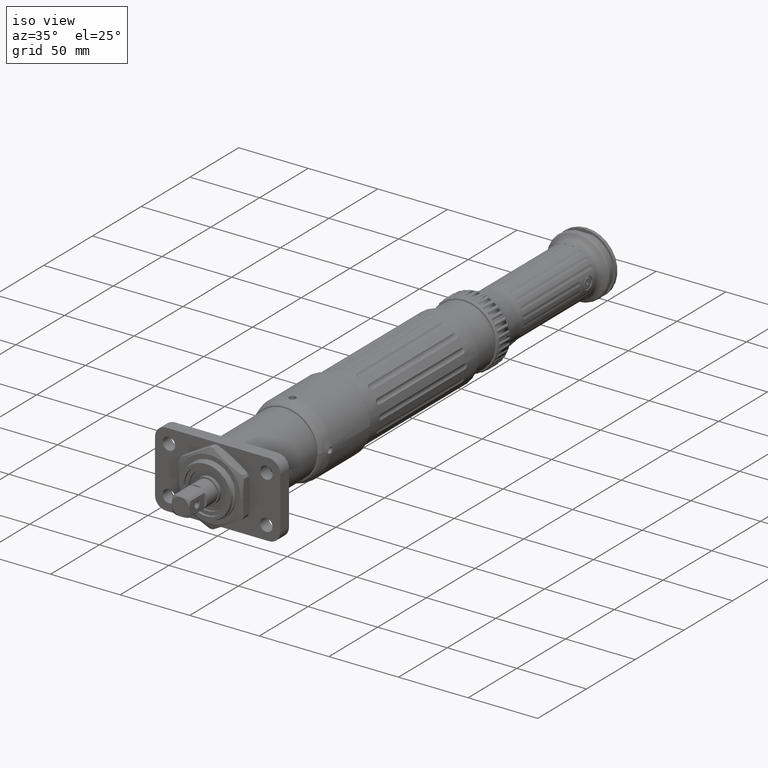
[diagram: clean part render]
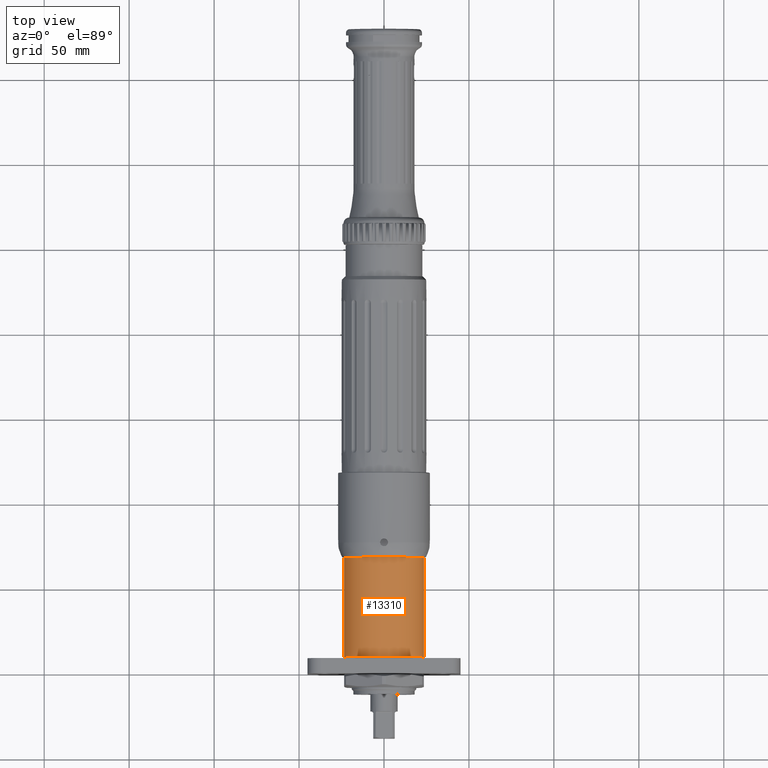
[diagram: tour spotlight — one face highlighted and labeled with its STEP entity id]
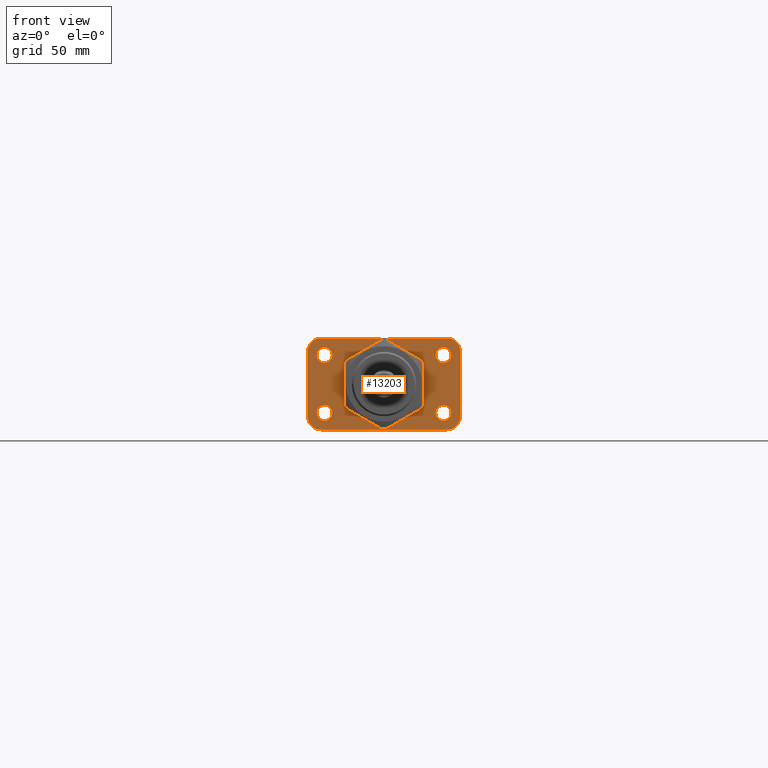
[diagram: tour spotlight — one face highlighted and labeled with its STEP entity id]
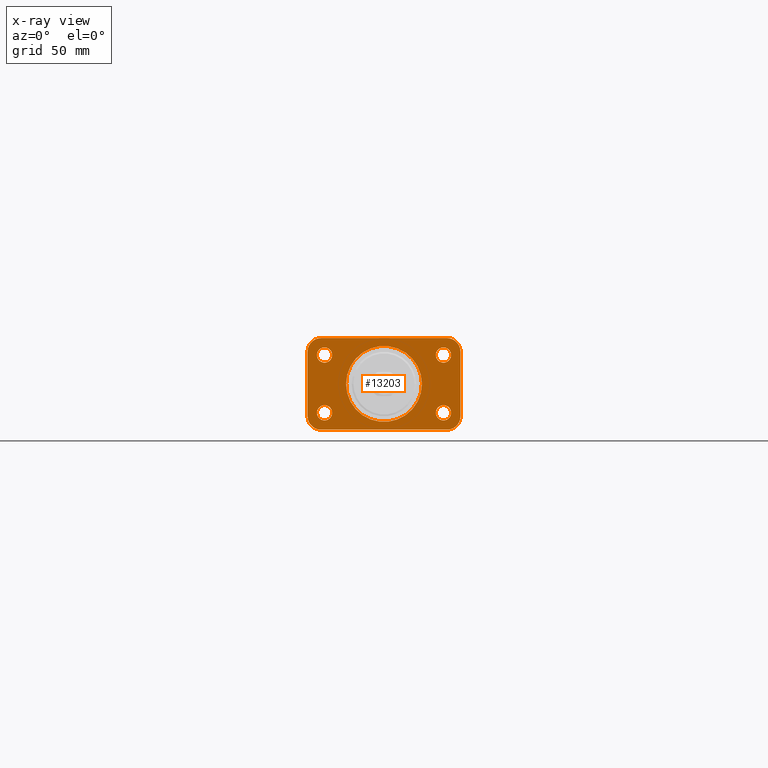
[diagram: x-ray of the same camera — body ghosted, this tour face saturated]
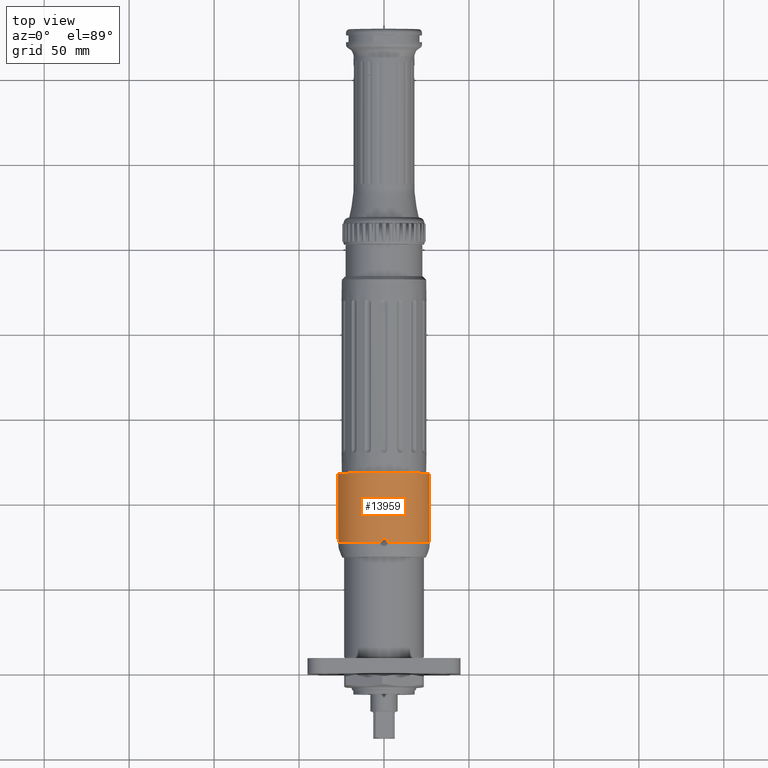
[diagram: tour spotlight — one face highlighted and labeled with its STEP entity id]
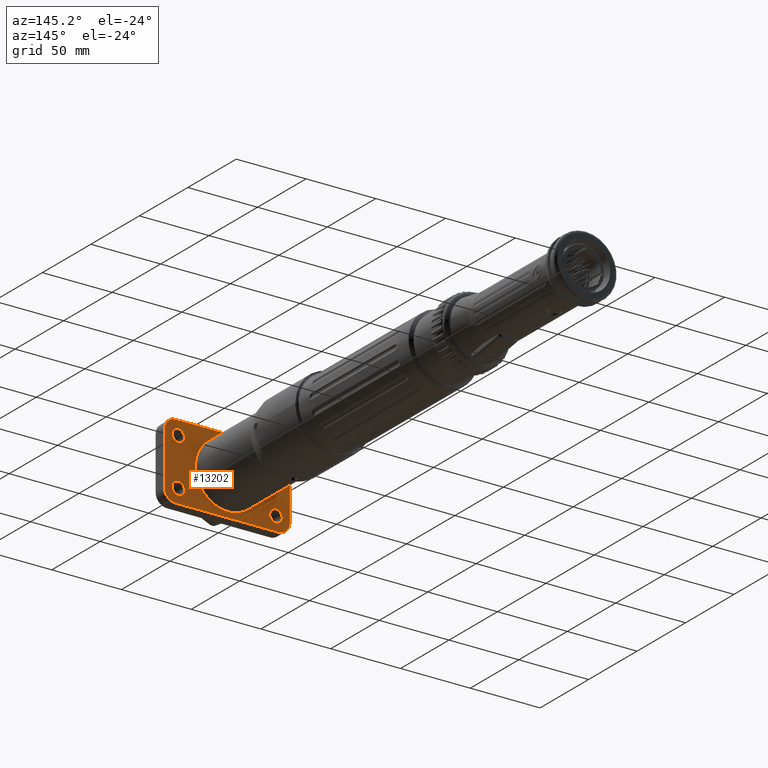
[diagram: tour spotlight — one face highlighted and labeled with its STEP entity id]
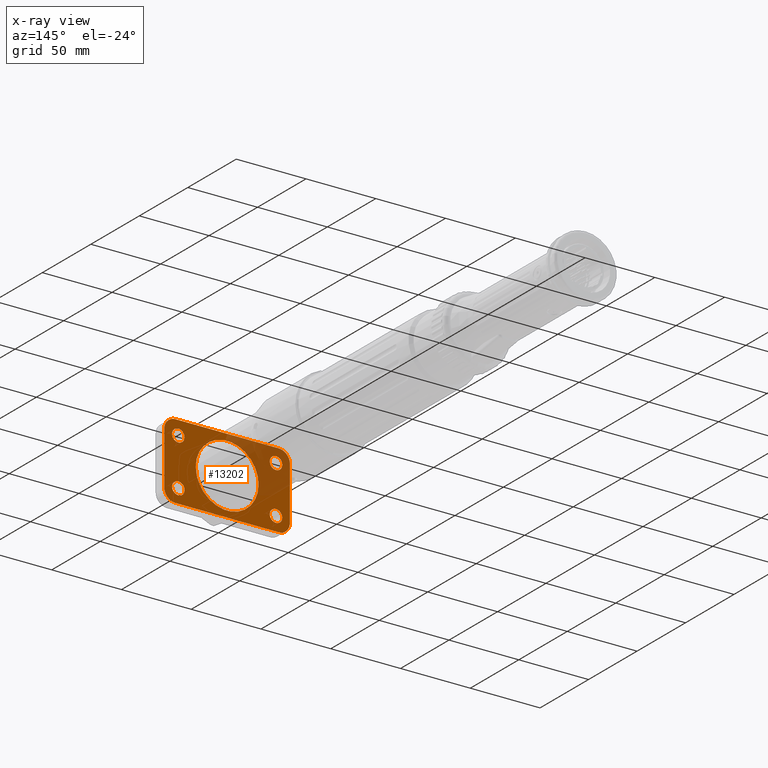
[diagram: x-ray of the same camera — body ghosted, this tour face saturated]
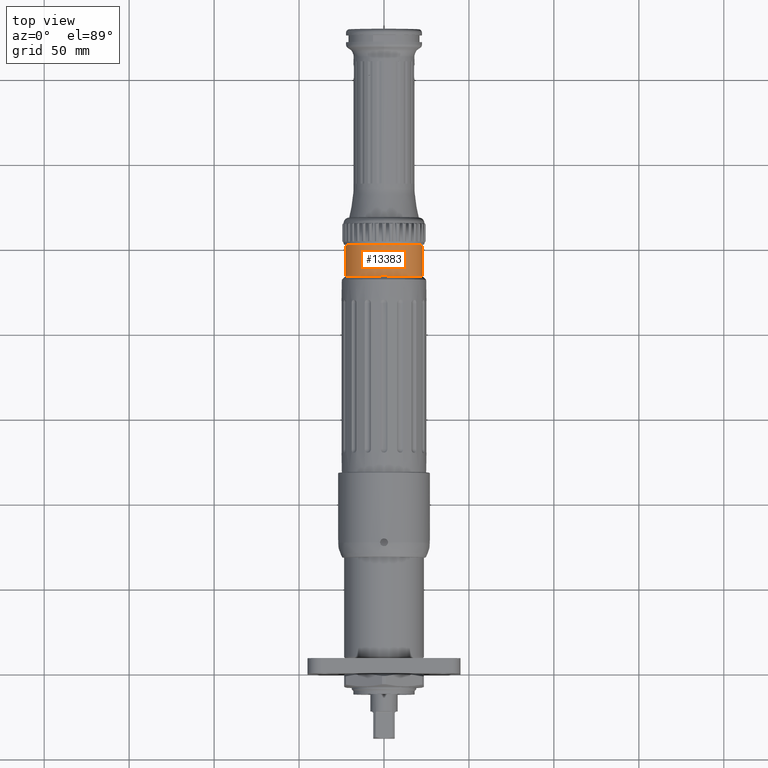
[diagram: tour spotlight — one face highlighted and labeled with its STEP entity id]
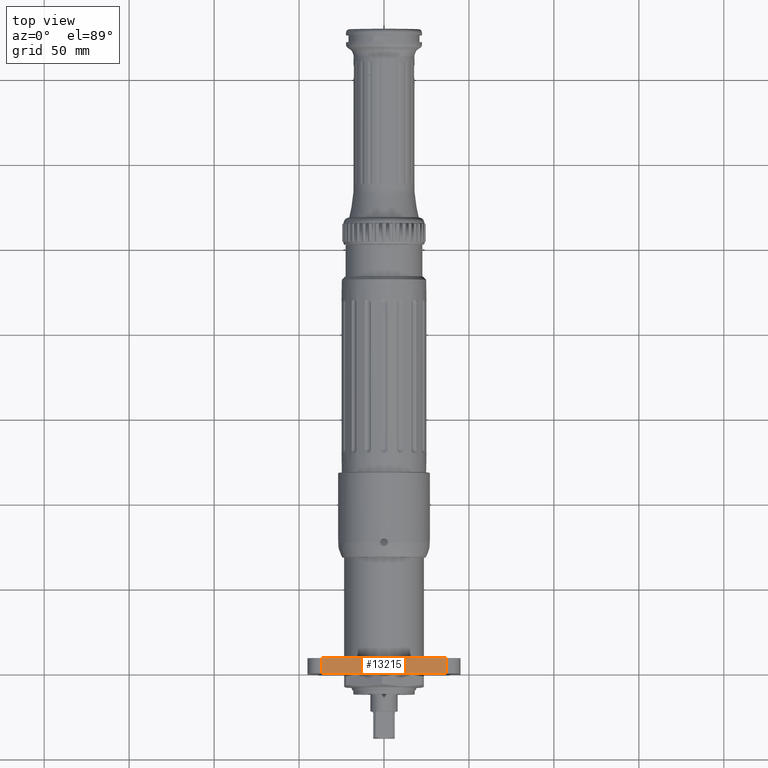
[diagram: tour spotlight — one face highlighted and labeled with its STEP entity id]
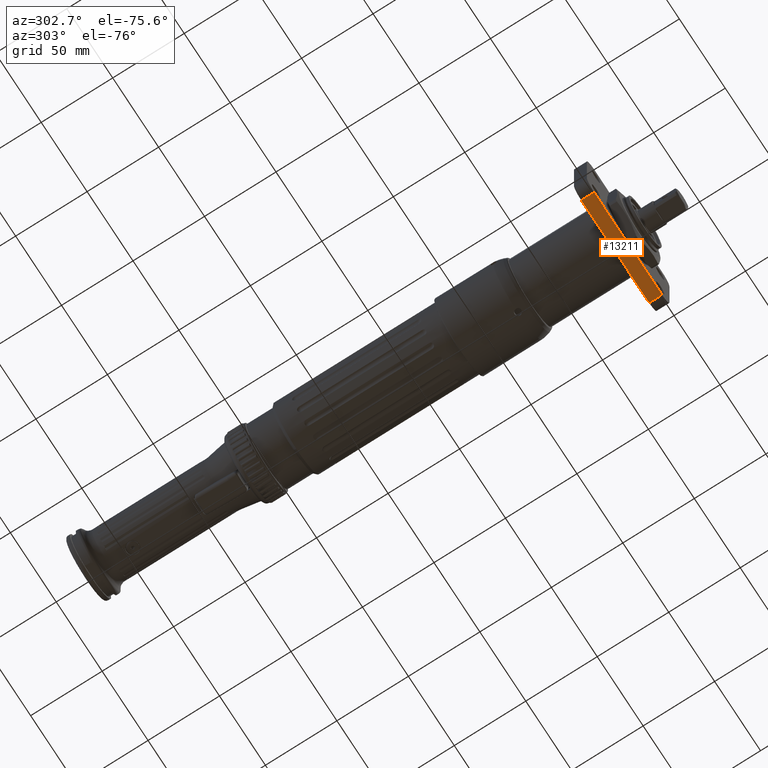
[diagram: tour spotlight — one face highlighted and labeled with its STEP entity id]
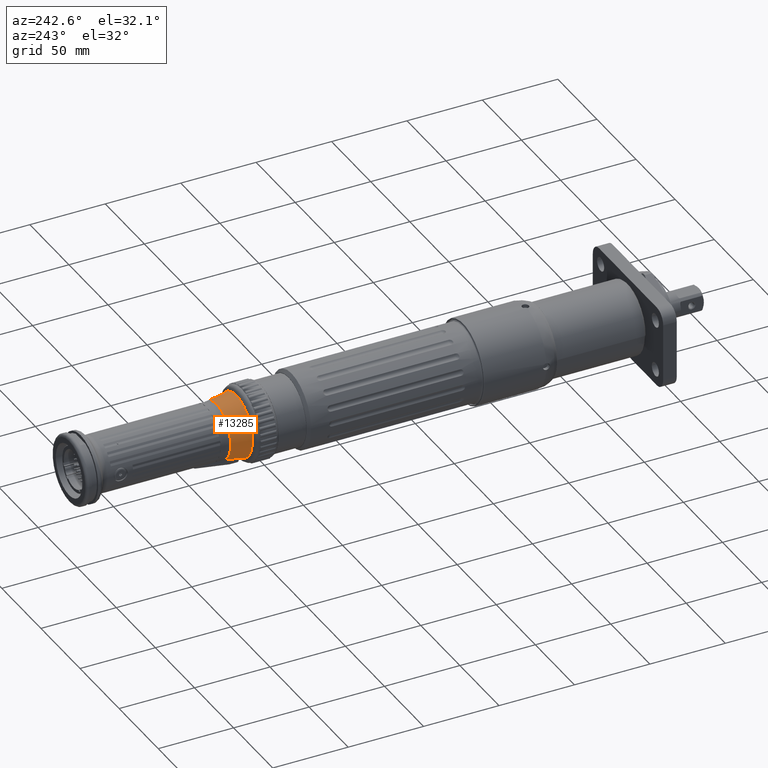
[diagram: tour spotlight — one face highlighted and labeled with its STEP entity id]
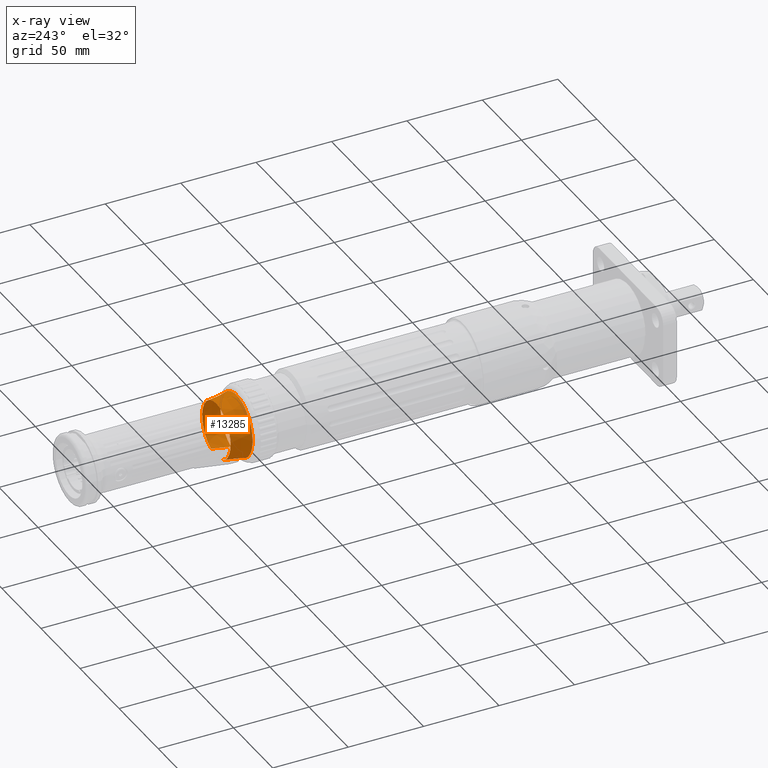
[diagram: x-ray of the same camera — body ghosted, this tour face saturated]
A machine part: a face-by-face anatomy tour. The part has 836 B-rep faces; the first image is the clean iso view, then the 8 largest visible faces are spotlighted one at a time (largest first), each with its STEP entity span.

Face 1 — top view, entity #13310. In plain terms, the highlighted cylindrical surface (bore or boss wall) has radius 23.5 mm, axis along (-0, 1, 0).
Definition (entity closure, byte-faithful):
#1764=CYLINDRICAL_SURFACE('',#14500,23.5);
#2267=CIRCLE('',#14432,23.5);
#2301=CIRCLE('',#14501,23.5);
#3399=FACE_BOUND('',#4662,.T.);
#3712=FACE_OUTER_BOUND('',#4661,.T.);
#4661=EDGE_LOOP('',(#9597));
#4662=EDGE_LOOP('',(#9598));
#6021=VERTEX_POINT('',#22002);
#6124=VERTEX_POINT('',#23044);
#7338=EDGE_CURVE('',#6021,#6021,#2267,.T.);
#7463=EDGE_CURVE('',#6124,#6124,#2301,.T.);
#9597=ORIENTED_EDGE('',*,*,#7338,.F.);
#9598=ORIENTED_EDGE('',*,*,#7463,.T.);
#13310=ADVANCED_FACE('',(#3712,#3399),#1764,.T.);
#14432=AXIS2_PLACEMENT_3D('',#22003,#16870,#16871);
#14500=AXIS2_PLACEMENT_3D('',#23043,#17042,#17043);
#14501=AXIS2_PLACEMENT_3D('',#23045,#17044,#17045);
#16870=DIRECTION('center_axis',(2.4980018054066E-16,1.,-5.39144740531135E-16));
#16871=DIRECTION('ref_axis',(1.42779753559261E-18,-5.39144740531135E-16,
-1.));
#17042=DIRECTION('center_axis',(-6.03382078600629E-17,1.,0.));
#17043=DIRECTION('ref_axis',(-1.,-6.03382078600629E-17,0.));
#17044=DIRECTION('center_axis',(-6.03382078600629E-17,1.,0.));
#17045=DIRECTION('ref_axis',(1.,6.03382078600629E-17,0.));
#22002=CARTESIAN_POINT('',(-23.5000000000001,68.5,-1.04351559928894E-13));
#22003=CARTESIAN_POINT('Origin',(7.105427357601E-14,68.5,-8.76982145595169E-14));
#23043=CARTESIAN_POINT('Origin',(-7.88016994652421E-15,45.,0.));
#23044=CARTESIAN_POINT('',(-23.5,9.99999999999998,0.));
#23045=CARTESIAN_POINT('Origin',(-5.76833267142201E-15,9.99999999999998,
0.));

Face 2 — front view, entity #13203. An x-ray twin of the same camera follows (body ghosted, this face saturated) — the face is partly hidden behind the body. In plain terms, the highlighted planar face has unit normal (0, -1, 0).
Definition (entity closure, byte-faithful):
#161=LINE('',#21063,#904);
#162=LINE('',#21067,#905);
#163=LINE('',#21071,#906);
#164=LINE('',#21075,#907);
#904=VECTOR('',#16158,10.);
#905=VECTOR('',#16161,10.);
#906=VECTOR('',#16164,10.);
#907=VECTOR('',#16167,10.);
#2061=CIRCLE('',#14142,7.99999999999997);
#2062=CIRCLE('',#14143,8.);
#2063=CIRCLE('',#14144,8.);
#2064=CIRCLE('',#14145,8.);
#2065=CIRCLE('',#14146,4.5);
#2066=CIRCLE('',#14147,4.5);
#2067=CIRCLE('',#14148,4.5);
#2068=CIRCLE('',#14149,4.5);
#2069=CIRCLE('',#14150,22.3160181013868);
#2865=PLANE('',#14141);
#3316=FACE_BOUND('',#4472,.T.);
#3317=FACE_BOUND('',#4473,.T.);
#3318=FACE_BOUND('',#4474,.T.);
#3319=FACE_BOUND('',#4475,.T.);
#3320=FACE_BOUND('',#4476,.T.);
#3605=FACE_OUTER_BOUND('',#4471,.T.);
#4471=EDGE_LOOP('',(#8890,#8891,#8892,#8893,#8894,#8895,#8896,#8897));
#4472=EDGE_LOOP('',(#8898));
#4473=EDGE_LOOP('',(#8899));
#4474=EDGE_LOOP('',(#8900));
#4475=EDGE_LOOP('',(#8901));
#4476=EDGE_LOOP('',(#8902));
#5714=VERTEX_POINT('',#21061);
#5715=VERTEX_POINT('',#21062);
#5716=VERTEX_POINT('',#21064);
#5717=VERTEX_POINT('',#21066);
#5718=VERTEX_POINT('',#21068);
#5719=VERTEX_POINT('',#21070);
#5720=VERTEX_POINT('',#21072);
#5721=VERTEX_POINT('',#21074);
#5722=VERTEX_POINT('',#21077);
#5723=VERTEX_POINT('',#21079);
#5724=VERTEX_POINT('',#21081);
#5725=VERTEX_POINT('',#21083);
#5726=VERTEX_POINT('',#21085);
#6968=EDGE_CURVE('',#5714,#5715,#161,.T.);
#6969=EDGE_CURVE('',#5715,#5716,#2061,.T.);
#6970=EDGE_CURVE('',#5716,#5717,#162,.T.);
#6971=EDGE_CURVE('',#5717,#5718,#2062,.T.);
#6972=EDGE_CURVE('',#5718,#5719,#163,.T.);
#6973=EDGE_CURVE('',#5719,#5720,#2063,.T.);
#6974=EDGE_CURVE('',#5720,#5721,#164,.T.);
#6975=EDGE_CURVE('',#5721,#5714,#2064,.T.);
#6976=EDGE_CURVE('',#5722,#5722,#2065,.T.);
#6977=EDGE_CURVE('',#5723,#5723,#2066,.T.);
#6978=EDGE_CURVE('',#5724,#5724,#2067,.T.);
#6979=EDGE_CURVE('',#5725,#5725,#2068,.T.);
#6980=EDGE_CURVE('',#5726,#5726,#2069,.T.);
#8890=ORIENTED_EDGE('',*,*,#6968,.T.);
#8891=ORIENTED_EDGE('',*,*,#6969,.T.);
#8892=ORIENTED_EDGE('',*,*,#6970,.T.);
#8893=ORIENTED_EDGE('',*,*,#6971,.T.);
#8894=ORIENTED_EDGE('',*,*,#6972,.T.);
#8895=ORIENTED_EDGE('',*,*,#6973,.T.);
#8896=ORIENTED_EDGE('',*,*,#6974,.T.);
#8897=ORIENTED_EDGE('',*,*,#6975,.T.);
#8898=ORIENTED_EDGE('',*,*,#6976,.T.);
#8899=ORIENTED_EDGE('',*,*,#6977,.T.);
#8900=ORIENTED_EDGE('',*,*,#6978,.T.);
#8901=ORIENTED_EDGE('',*,*,#6979,.T.);
#8902=ORIENTED_EDGE('',*,*,#6980,.F.);
#13203=ADVANCED_FACE('',(#3605,#3316,#3317,#3318,#3319,#3320),#2865,.T.);
#14141=AXIS2_PLACEMENT_3D('',#21060,#16156,#16157);
#14142=AXIS2_PLACEMENT_3D('',#21065,#16159,#16160);
#14143=AXIS2_PLACEMENT_3D('',#21069,#16162,#16163);
#14144=AXIS2_PLACEMENT_3D('',#21073,#16165,#16166);
#14145=AXIS2_PLACEMENT_3D('',#21076,#16168,#16169);
#14146=AXIS2_PLACEMENT_3D('',#21078,#16170,#16171);
#14147=AXIS2_PLACEMENT_3D('',#21080,#16172,#16173);
#14148=AXIS2_PLACEMENT_3D('',#21082,#16174,#16175);
#14149=AXIS2_PLACEMENT_3D('',#21084,#16176,#16177);
#14150=AXIS2_PLACEMENT_3D('',#21086,#16178,#16179);
#16156=DIRECTION('center_axis',(0.,-1.,0.));
#16157=DIRECTION('ref_axis',(0.,0.,-1.));
#16158=DIRECTION('',(-1.,-6.03382078600629E-17,-1.20024110770287E-16));
#16159=DIRECTION('center_axis',(6.03382078600629E-17,-1.,0.));
#16160=DIRECTION('ref_axis',(-2.7755575615629E-15,-1.67472169077151E-31,
-1.));
#16161=DIRECTION('',(-4.67462326157961E-16,-2.82058390024675E-32,-1.));
#16162=DIRECTION('center_axis',(6.03382078600629E-17,-1.,0.));
#16163=DIRECTION('ref_axis',(1.,6.03382078600628E-17,-2.77555756156289E-16));
#16164=DIRECTION('',(1.,6.03382078600629E-17,6.00120553851436E-17));
#16165=DIRECTION('center_axis',(6.03382078600629E-17,-1.,0.));
#16166=DIRECTION('ref_axis',(5.55111512312579E-16,3.34944338154302E-32,
1.));
#16167=DIRECTION('',(0.,0.,1.));
#16168=DIRECTION('center_axis',(6.03382078600629E-17,-1.,0.));
#16169=DIRECTION('ref_axis',(-1.,-6.03382078600628E-17,0.));
#16170=DIRECTION('center_axis',(0.,1.,0.));
#16171=DIRECTION('ref_axis',(-1.,0.,0.));
#16172=DIRECTION('center_axis',(0.,1.,0.));
#16173=DIRECTION('ref_axis',(-1.,0.,0.));
#16174=DIRECTION('center_axis',(0.,1.,0.));
#16175=DIRECTION('ref_axis',(-1.,0.,0.));
#16176=DIRECTION('center_axis',(0.,1.,0.));
#16177=DIRECTION('ref_axis',(-1.,0.,0.));
#16178=DIRECTION('center_axis',(1.92414935335906E-16,-1.,0.));
#16179=DIRECTION('ref_axis',(1.,1.92414935335906E-16,0.));
#21060=CARTESIAN_POINT('Origin',(-3.81812805983763E-15,0.,-6.36354676639605E-15));
#21061=CARTESIAN_POINT('',(37.,-1.77635683940025E-14,27.));
#21062=CARTESIAN_POINT('',(-37.,-1.77635683940025E-14,27.));
#21063=CARTESIAN_POINT('',(-37.,-1.77635683940025E-14,27.));
#21064=CARTESIAN_POINT('',(-45.,-1.77635683940025E-14,19.));
#21065=CARTESIAN_POINT('Origin',(-37.,-1.77635683940025E-14,19.));
#21066=CARTESIAN_POINT('',(-45.,-1.77635683940025E-14,-19.));
#21067=CARTESIAN_POINT('',(-45.,-1.77635683940025E-14,-19.));
#21068=CARTESIAN_POINT('',(-37.,-1.77635683940025E-14,-27.));
#21069=CARTESIAN_POINT('Origin',(-37.,-1.77635683940025E-14,-19.));
#21070=CARTESIAN_POINT('',(37.,-1.77635683940025E-14,-27.));
#21071=CARTESIAN_POINT('',(37.,-1.77635683940025E-14,-27.));
#21072=CARTESIAN_POINT('',(45.,-1.77635683940025E-14,-19.));
#21073=CARTESIAN_POINT('Origin',(37.,-1.77635683940025E-14,-19.));
#21074=CARTESIAN_POINT('',(45.,-1.77635683940025E-14,19.));
#21075=CARTESIAN_POINT('',(45.,-1.77635683940025E-14,19.));
#21076=CARTESIAN_POINT('Origin',(37.,-1.77635683940025E-14,19.));
#21077=CARTESIAN_POINT('',(-30.5,-1.77635683940025E-14,17.));
#21078=CARTESIAN_POINT('Origin',(-35.,0.,17.));
#21079=CARTESIAN_POINT('',(39.5,-1.77635683940025E-14,17.));
#21080=CARTESIAN_POINT('Origin',(35.,0.,17.));
#21081=CARTESIAN_POINT('',(-30.5,-1.77635683940025E-14,-17.));
#21082=CARTESIAN_POINT('Origin',(-35.,0.,-17.));
#21083=CARTESIAN_POINT('',(39.5,-1.77635683940025E-14,-17.));
#21084=CARTESIAN_POINT('Origin',(35.,0.,-17.));
#21085=CARTESIAN_POINT('',(22.3160181013868,-1.77635683940025E-14,0.));
#21086=CARTESIAN_POINT('Origin',(-2.44249065417534E-14,-1.77635683940025E-14,
0.));

Face 3 — top view, entity #13959. In plain terms, the highlighted cylindrical surface (bore or boss wall) has radius 27 mm, axis along (0, 1, -0).
Definition (entity closure, byte-faithful):
#1963=CYLINDRICAL_SURFACE('',#15752,27.);
#2831=CIRCLE('',#15748,27.);
#2832=CIRCLE('',#15749,27.);
#2833=CIRCLE('',#15750,27.);
#2834=CIRCLE('',#15751,27.);
#2835=CIRCLE('',#15753,27.);
#3528=FACE_BOUND('',#5440,.T.);
#4361=FACE_OUTER_BOUND('',#5439,.T.);
#5439=EDGE_LOOP('',(#12215));
#5440=EDGE_LOOP('',(#12216,#12217,#12218,#12219,#12220,#12221,#12222,#12223,
#12224,#12225,#12226,#12227));
#5517=B_SPLINE_CURVE_WITH_KNOTS('',3,(#22603,#22604,#22605,#22606,#22607,
#22608,#22609,#22610,#22611,#22612),.UNSPECIFIED.,.F.,.F.,(4,2,2,2,4),(1.04019628971994,
1.12687923638127,1.21356218304259,1.30024528466792,1.36848005378065),
 .UNSPECIFIED.);
#5518=B_SPLINE_CURVE_WITH_KNOTS('',3,(#22614,#22615,#22616,#22617,#22618,
#22619,#22620,#22621,#22622,#22623),.UNSPECIFIED.,.F.,.F.,(4,2,2,2,4),(0.711912525659239,
0.780147294771962,0.866830396397295,0.953513343058619,1.04019628971994),
 .UNSPECIFIED.);
#5520=B_SPLINE_CURVE_WITH_KNOTS('',3,(#22653,#22654,#22655,#22656,#22657,
#22658,#22659,#22660,#22661,#22662),.UNSPECIFIED.,.F.,.F.,(4,2,2,2,4),(1.04019628971994,
1.12687923638127,1.21356218304259,1.30024528466792,1.36848005378065),
 .UNSPECIFIED.);
#5521=B_SPLINE_CURVE_WITH_KNOTS('',3,(#22664,#22665,#22666,#22667,#22668,
#22669,#22670,#22671,#22672,#22673),.UNSPECIFIED.,.F.,.F.,(4,2,2,2,4),(0.711912525659239,
0.780147294771962,0.866830396397295,0.953513343058619,1.04019628971994),
 .UNSPECIFIED.);
#5523=B_SPLINE_CURVE_WITH_KNOTS('',3,(#22705,#22706,#22707,#22708,#22709,
#22710,#22711,#22712,#22713,#22714),.UNSPECIFIED.,.F.,.F.,(4,2,2,2,4),(1.04019628971994,
1.12687923638127,1.21356218304259,1.30024528466792,1.36848005378065),
 .UNSPECIFIED.);
#5524=B_SPLINE_CURVE_WITH_KNOTS('',3,(#22716,#22717,#22718,#22719,#22720,
#22721,#22722,#22723,#22724,#22725),.UNSPECIFIED.,.F.,.F.,(4,2,2,2,4),(0.711912525659239,
0.780147294771962,0.866830396397295,0.953513343058619,1.04019628971994),
 .UNSPECIFIED.);
#5527=B_SPLINE_CURVE_WITH_KNOTS('',3,(#22760,#22761,#22762,#22763,#22764,
#22765,#22766,#22767,#22768,#22769),.UNSPECIFIED.,.F.,.F.,(4,2,2,2,4),(1.04019628971994,
1.12687923638127,1.21356218304259,1.30024528466792,1.36848005378065),
 .UNSPECIFIED.);
#5528=B_SPLINE_CURVE_WITH_KNOTS('',3,(#22771,#22772,#22773,#22774,#22775,
#22776,#22777,#22778,#22779,#22780),.UNSPECIFIED.,.F.,.F.,(4,2,2,2,4),(0.711912525659239,
0.780147294771962,0.866830396397295,0.953513343058619,1.04019628971994),
 .UNSPECIFIED.);
#6065=VERTEX_POINT('',#22601);
#6066=VERTEX_POINT('',#22602);
#6067=VERTEX_POINT('',#22613);
#6069=VERTEX_POINT('',#22651);
#6070=VERTEX_POINT('',#22652);
#6071=VERTEX_POINT('',#22663);
#6074=VERTEX_POINT('',#22703);
#6075=VERTEX_POINT('',#22704);
#6076=VERTEX_POINT('',#22715);
#6079=VERTEX_POINT('',#22758);
#6080=VERTEX_POINT('',#22759);
#6081=VERTEX_POINT('',#22770);
#6772=VERTEX_POINT('',#25938);
#7386=EDGE_CURVE('',#6065,#6066,#5517,.T.);
#7387=EDGE_CURVE('',#6067,#6065,#5518,.T.);
#7390=EDGE_CURVE('',#6069,#6070,#5520,.T.);
#7391=EDGE_CURVE('',#6071,#6069,#5521,.T.);
#7395=EDGE_CURVE('',#6074,#6075,#5523,.T.);
#7396=EDGE_CURVE('',#6076,#6074,#5524,.T.);
#7400=EDGE_CURVE('',#6079,#6080,#5527,.T.);
#7401=EDGE_CURVE('',#6081,#6079,#5528,.T.);
#8589=EDGE_CURVE('',#6076,#6070,#2831,.T.);
#8590=EDGE_CURVE('',#6071,#6080,#2832,.T.);
#8591=EDGE_CURVE('',#6081,#6066,#2833,.T.);
#8592=EDGE_CURVE('',#6067,#6075,#2834,.T.);
#8593=EDGE_CURVE('',#6772,#6772,#2835,.T.);
#12215=ORIENTED_EDGE('',*,*,#8593,.F.);
#12216=ORIENTED_EDGE('',*,*,#7395,.T.);
#12217=ORIENTED_EDGE('',*,*,#8592,.F.);
#12218=ORIENTED_EDGE('',*,*,#7387,.T.);
#12219=ORIENTED_EDGE('',*,*,#7386,.T.);
#12220=ORIENTED_EDGE('',*,*,#8591,.F.);
#12221=ORIENTED_EDGE('',*,*,#7401,.T.);
#12222=ORIENTED_EDGE('',*,*,#7400,.T.);
#12223=ORIENTED_EDGE('',*,*,#8590,.F.);
#12224=ORIENTED_EDGE('',*,*,#7391,.T.);
#12225=ORIENTED_EDGE('',*,*,#7390,.T.);
#12226=ORIENTED_EDGE('',*,*,#8589,.F.);
#12227=ORIENTED_EDGE('',*,*,#7396,.T.);
#13959=ADVANCED_FACE('',(#4361,#3528),#1963,.T.);
#15748=AXIS2_PLACEMENT_3D('',#25933,#20037,#20038);
#15749=AXIS2_PLACEMENT_3D('',#25934,#20039,#20040);
#15750=AXIS2_PLACEMENT_3D('',#25935,#20041,#20042);
#15751=AXIS2_PLACEMENT_3D('',#25936,#20043,#20044);
#15752=AXIS2_PLACEMENT_3D('',#25937,#20045,#20046);
#15753=AXIS2_PLACEMENT_3D('',#25939,#20047,#20048);
#20037=DIRECTION('center_axis',(-2.4980018054066E-16,-1.,5.39144740531135E-16));
#20038=DIRECTION('ref_axis',(-1.,2.4980018054066E-16,-6.26601374929604E-17));
#20039=DIRECTION('center_axis',(-2.4980018054066E-16,-1.,5.39144740531135E-16));
#20040=DIRECTION('ref_axis',(-1.,2.4980018054066E-16,-6.26601374929604E-17));
#20041=DIRECTION('center_axis',(-2.4980018054066E-16,-1.,5.39144740531135E-16));
#20042=DIRECTION('ref_axis',(-1.,2.4980018054066E-16,-6.26601374929604E-17));
#20043=DIRECTION('center_axis',(-2.4980018054066E-16,-1.,5.39144740531135E-16));
#20044=DIRECTION('ref_axis',(-1.,2.4980018054066E-16,-6.26601374929604E-17));
#20045=DIRECTION('center_axis',(2.4980018054066E-16,1.,-5.39144740531135E-16));
#20046=DIRECTION('ref_axis',(1.,-2.4980018054066E-16,1.42779753559272E-18));
#20047=DIRECTION('center_axis',(2.4980018054066E-16,1.,-5.39144740531135E-16));
#20048=DIRECTION('ref_axis',(-1.,2.4980018054066E-16,-6.26601374929604E-17));
#22601=CARTESIAN_POINT('',(-26.9999999999999,79.3,-9.02529819330163E-14));
#22602=CARTESIAN_POINT('',(-26.9025064283222,77.186687240918,2.29241093045683));
#22603=CARTESIAN_POINT('Ctrl Pts',(-26.9999999999999,79.3,-9.04831765069503E-14));
#22604=CARTESIAN_POINT('Ctrl Pts',(-26.9999999999999,79.3,0.288943155537657));
#22605=CARTESIAN_POINT('Ctrl Pts',(-26.9948862547709,79.2422259885171,0.597050501340231));
#22606=CARTESIAN_POINT('Ctrl Pts',(-26.9764007547342,79.0074588777271,1.1636818853709));
#22607=CARTESIAN_POINT('Ctrl Pts',(-26.9632920247863,78.8304735144715,1.4222176789865));
#22608=CARTESIAN_POINT('Ctrl Pts',(-26.9386559699386,78.422217314065,1.83047387939305));
#22609=CARTESIAN_POINT('Ctrl Pts',(-26.9255264247119,78.1636816814889,2.00745895932592));
#22610=CARTESIAN_POINT('Ctrl Pts',(-26.9089654485858,77.6573474418572,2.21724372027039));
#22611=CARTESIAN_POINT('Ctrl Pts',(-26.9041187623046,77.4190321248671,2.2734894427124));
#22612=CARTESIAN_POINT('Ctrl Pts',(-26.9025064283222,77.186687240918,2.29241093045685));
#22613=CARTESIAN_POINT('',(-26.9025064283222,77.186687240918,-2.29241093045702));
#22614=CARTESIAN_POINT('Ctrl Pts',(-26.9025064283222,77.186687240918,-2.29241093045702));
#22615=CARTESIAN_POINT('Ctrl Pts',(-26.9041187623046,77.4190321248671,-2.27348944271258));
#22616=CARTESIAN_POINT('Ctrl Pts',(-26.9089654485858,77.6573474418572,-2.21724372027057));
#22617=CARTESIAN_POINT('Ctrl Pts',(-26.9255264247119,78.1636816814889,-2.0074589593261));
#22618=CARTESIAN_POINT('Ctrl Pts',(-26.9386559699386,78.422217314065,-1.83047387939323));
#22619=CARTESIAN_POINT('Ctrl Pts',(-26.9632920247863,78.8304735144715,-1.42221767898668));
#22620=CARTESIAN_POINT('Ctrl Pts',(-26.9764007547342,79.0074588777271,-1.16368188537108));
#22621=CARTESIAN_POINT('Ctrl Pts',(-26.9948862547709,79.2422259885171,-0.597050501340412));
#22622=CARTESIAN_POINT('Ctrl Pts',(-26.9999999999999,79.3,-0.288943155537837));
#22623=CARTESIAN_POINT('Ctrl Pts',(-26.9999999999999,79.3,-9.05178709764698E-14));
#22651=CARTESIAN_POINT('',(27.0000000000001,79.3,-9.34824272237921E-14));
#22652=CARTESIAN_POINT('',(26.9025064283224,77.186687240918,-2.29241093045702));
#22653=CARTESIAN_POINT('Ctrl Pts',(27.0000000000001,79.3,-9.32587340685131E-14));
#22654=CARTESIAN_POINT('Ctrl Pts',(27.0000000000001,79.3,-0.28894315553784));
#22655=CARTESIAN_POINT('Ctrl Pts',(26.9948862547711,79.2422259885171,-0.597050501340415));
#22656=CARTESIAN_POINT('Ctrl Pts',(26.9764007547343,79.0074588777271,-1.16368188537109));
#22657=CARTESIAN_POINT('Ctrl Pts',(26.9632920247864,78.8304735144715,-1.42221767898668));
#22658=CARTESIAN_POINT('Ctrl Pts',(26.9386559699388,78.422217314065,-1.83047387939323));
#22659=CARTESIAN_POINT('Ctrl Pts',(26.9255264247121,78.1636816814889,-2.0074589593261));
#22660=CARTESIAN_POINT('Ctrl Pts',(26.9089654485859,77.6573474418572,-2.21724372027057));
#22661=CARTESIAN_POINT('Ctrl Pts',(26.9041187623047,77.4190321248671,-2.27348944271258));
#22662=CARTESIAN_POINT('Ctrl Pts',(26.9025064283224,77.186687240918,-2.29241093045703));
#22663=CARTESIAN_POINT('',(26.9025064283224,77.186687240918,2.29241093045684));
#22664=CARTESIAN_POINT('Ctrl Pts',(26.9025064283224,77.186687240918,2.29241093045684));
#22665=CARTESIAN_POINT('Ctrl Pts',(26.9041187623047,77.4190321248671,2.2734894427124));
#22666=CARTESIAN_POINT('Ctrl Pts',(26.9089654485859,77.6573474418572,2.21724372027039));
#22667=CARTESIAN_POINT('Ctrl Pts',(26.9255264247121,78.1636816814889,2.00745895932591));
#22668=CARTESIAN_POINT('Ctrl Pts',(26.9386559699388,78.422217314065,1.83047387939305));
#22669=CARTESIAN_POINT('Ctrl Pts',(26.9632920247864,78.8304735144715,1.4222176789865));
#22670=CARTESIAN_POINT('Ctrl Pts',(26.9764007547343,79.0074588777271,1.1636818853709));
#22671=CARTESIAN_POINT('Ctrl Pts',(26.9948862547711,79.2422259885171,0.597050501340228));
#22672=CARTESIAN_POINT('Ctrl Pts',(27.0000000000001,79.3,0.288943155537653));
#22673=CARTESIAN_POINT('Ctrl Pts',(27.0000000000001,79.3,-9.38832345198648E-14));
#22703=CARTESIAN_POINT('',(6.88308465227634E-14,79.3,-27.0000000000001));
#22704=CARTESIAN_POINT('',(-2.29241093045687,77.1866872409179,-26.9025064283224));
#22705=CARTESIAN_POINT('Ctrl Pts',(6.93889390390723E-14,79.3,-27.0000000000001));
#22706=CARTESIAN_POINT('Ctrl Pts',(-0.288943155537678,79.3,-27.0000000000001));
#22707=CARTESIAN_POINT('Ctrl Pts',(-0.597050501340253,79.2422259885171,
-26.9948862547711));
#22708=CARTESIAN_POINT('Ctrl Pts',(-1.16368188537092,79.0074588777271,-26.9764007547343));
#22709=CARTESIAN_POINT('Ctrl Pts',(-1.42221767898652,78.8304735144715,-26.9632920247865));
#22710=CARTESIAN_POINT('Ctrl Pts',(-1.83047387939307,78.4222173140649,-26.9386559699388));
#22711=CARTESIAN_POINT('Ctrl Pts',(-2.00745895932594,78.1636816814888,-26.9255264247121));
#22712=CARTESIAN_POINT('Ctrl Pts',(-2.21724372027041,77.6573474418572,-26.908965448586));
#22713=CARTESIAN_POINT('Ctrl Pts',(-2.27348944271242,77.4190321248671,-26.9041187623048));
#22714=CARTESIAN_POINT('Ctrl Pts',(-2.29241093045687,77.1866872409179,-26.9025064283224));
#22715=CARTESIAN_POINT('',(2.292410930457,77.1866872409179,-26.9025064283224));
#22716=CARTESIAN_POINT('Ctrl Pts',(2.292410930457,77.1866872409179,-26.9025064283224));
#22717=CARTESIAN_POINT('Ctrl Pts',(2.27348944271256,77.4190321248671,-26.9041187623048));
#22718=CARTESIAN_POINT('Ctrl Pts',(2.21724372027055,77.6573474418572,-26.908965448586));
#22719=CARTESIAN_POINT('Ctrl Pts',(2.00745895932608,78.1636816814888,-26.9255264247121));
#22720=CARTESIAN_POINT('Ctrl Pts',(1.83047387939321,78.4222173140649,-26.9386559699388));
#22721=CARTESIAN_POINT('Ctrl Pts',(1.42221767898666,78.8304735144715,-26.9632920247865));
#22722=CARTESIAN_POINT('Ctrl Pts',(1.16368188537106,79.0074588777271,-26.9764007547343));
#22723=CARTESIAN_POINT('Ctrl Pts',(0.597050501340391,79.2422259885171,-26.9948862547711));
#22724=CARTESIAN_POINT('Ctrl Pts',(0.288943155537816,79.3,-27.0000000000001));
#22725=CARTESIAN_POINT('Ctrl Pts',(6.87644385877206E-14,79.3,-27.0000000000001));
#22758=CARTESIAN_POINT('',(7.53668381712371E-14,79.3,26.9999999999999));
#22759=CARTESIAN_POINT('',(2.29241093045701,77.186687240918,26.9025064283222));
#22760=CARTESIAN_POINT('Ctrl Pts',(7.49400541621981E-14,79.3,26.9999999999999));
#22761=CARTESIAN_POINT('Ctrl Pts',(0.288943155537822,79.3,26.9999999999999));
#22762=CARTESIAN_POINT('Ctrl Pts',(0.597050501340397,79.2422259885171,26.9948862547709));
#22763=CARTESIAN_POINT('Ctrl Pts',(1.16368188537107,79.0074588777271,26.9764007547341));
#22764=CARTESIAN_POINT('Ctrl Pts',(1.42221767898667,78.8304735144715,26.9632920247863));
#22765=CARTESIAN_POINT('Ctrl Pts',(1.83047387939321,78.422217314065,26.9386559699386));
#22766=CARTESIAN_POINT('Ctrl Pts',(2.00745895932608,78.1636816814889,26.9255264247119));
#22767=CARTESIAN_POINT('Ctrl Pts',(2.21724372027055,77.6573474418572,26.9089654485858));
#22768=CARTESIAN_POINT('Ctrl Pts',(2.27348944271257,77.4190321248671,26.9041187623046));
#22769=CARTESIAN_POINT('Ctrl Pts',(2.29241093045701,77.186687240918,26.9025064283222));
#22770=CARTESIAN_POINT('',(-2.29241093045686,77.186687240918,26.9025064283222));
#22771=CARTESIAN_POINT('Ctrl Pts',(-2.29241093045686,77.186687240918,26.9025064283222));
#22772=CARTESIAN_POINT('Ctrl Pts',(-2.27348944271241,77.4190321248671,26.9041187623046));
#22773=CARTESIAN_POINT('Ctrl Pts',(-2.2172437202704,77.6573474418572,26.9089654485858));
#22774=CARTESIAN_POINT('Ctrl Pts',(-2.00745895932593,78.1636816814889,26.9255264247119));
#22775=CARTESIAN_POINT('Ctrl Pts',(-1.83047387939306,78.422217314065,26.9386559699386));
#22776=CARTESIAN_POINT('Ctrl Pts',(-1.42221767898652,78.8304735144715,26.9632920247863));
#22777=CARTESIAN_POINT('Ctrl Pts',(-1.16368188537092,79.0074588777271,26.9764007547341));
#22778=CARTESIAN_POINT('Ctrl Pts',(-0.597050501340246,79.2422259885171,
26.9948862547709));
#22779=CARTESIAN_POINT('Ctrl Pts',(-0.288943155537672,79.3,26.9999999999999));
#22780=CARTESIAN_POINT('Ctrl Pts',(7.50788320402762E-14,79.3,26.9999999999999));
#25933=CARTESIAN_POINT('Origin',(7.32242096170916E-14,77.186687240918,-9.23815962980967E-14));
#25934=CARTESIAN_POINT('Origin',(7.32242096170916E-14,77.186687240918,-9.23815962980967E-14));
#25935=CARTESIAN_POINT('Origin',(7.32242096170916E-14,77.186687240918,-9.23815962980967E-14));
#25936=CARTESIAN_POINT('Origin',(7.32242096170916E-14,77.186687240918,-9.23815962980967E-14));
#25937=CARTESIAN_POINT('Origin',(7.7968900859419E-14,96.1806336506369,-1.02622082606827E-13));
#25938=CARTESIAN_POINT('',(27.0000000000001,118.,-1.16000601861196E-13));
#25939=CARTESIAN_POINT('Origin',(8.34193825127727E-14,118.,-1.14385879215808E-13));

Face 4 — auxiliary view, entity #13202. An x-ray twin of the same camera follows (body ghosted, this face saturated) — the face is partly hidden behind the body. In plain terms, the highlighted planar face has unit normal (0, -1, 0).
Definition (entity closure, byte-faithful):
#157=LINE('',#21036,#900);
#158=LINE('',#21040,#901);
#159=LINE('',#21044,#902);
#160=LINE('',#21048,#903);
#900=VECTOR('',#16134,10.);
#901=VECTOR('',#16137,10.);
#902=VECTOR('',#16140,10.);
#903=VECTOR('',#16143,10.);
#2052=CIRCLE('',#14132,8.);
#2053=CIRCLE('',#14133,8.);
#2054=CIRCLE('',#14134,8.);
#2055=CIRCLE('',#14135,7.99999999999997);
#2056=CIRCLE('',#14136,22.5);
#2057=CIRCLE('',#14137,4.5);
#2058=CIRCLE('',#14138,4.5);
#2059=CIRCLE('',#14139,4.5);
#2060=CIRCLE('',#14140,4.5);
#2864=PLANE('',#14131);
#3311=FACE_BOUND('',#4466,.T.);
#3312=FACE_BOUND('',#4467,.T.);
#3313=FACE_BOUND('',#4468,.T.);
#3314=FACE_BOUND('',#4469,.T.);
#3315=FACE_BOUND('',#4470,.T.);
#3604=FACE_OUTER_BOUND('',#4465,.T.);
#4465=EDGE_LOOP('',(#8877,#8878,#8879,#8880,#8881,#8882,#8883,#8884));
#4466=EDGE_LOOP('',(#8885));
#4467=EDGE_LOOP('',(#8886));
#4468=EDGE_LOOP('',(#8887));
#4469=EDGE_LOOP('',(#8888));
#4470=EDGE_LOOP('',(#8889));
#5701=VERTEX_POINT('',#21034);
#5702=VERTEX_POINT('',#21035);
#5703=VERTEX_POINT('',#21037);
#5704=VERTEX_POINT('',#21039);
#5705=VERTEX_POINT('',#21041);
#5706=VERTEX_POINT('',#21043);
#5707=VERTEX_POINT('',#21045);
#5708=VERTEX_POINT('',#21047);
#5709=VERTEX_POINT('',#21050);
#5710=VERTEX_POINT('',#21052);
#5711=VERTEX_POINT('',#21054);
#5712=VERTEX_POINT('',#21056);
#5713=VERTEX_POINT('',#21058);
#6955=EDGE_CURVE('',#5701,#5702,#157,.T.);
#6956=EDGE_CURVE('',#5702,#5703,#2052,.T.);
#6957=EDGE_CURVE('',#5703,#5704,#158,.T.);
#6958=EDGE_CURVE('',#5704,#5705,#2053,.T.);
#6959=EDGE_CURVE('',#5705,#5706,#159,.T.);
#6960=EDGE_CURVE('',#5706,#5707,#2054,.T.);
#6961=EDGE_CURVE('',#5707,#5708,#160,.T.);
#6962=EDGE_CURVE('',#5708,#5701,#2055,.T.);
#6963=EDGE_CURVE('',#5709,#5709,#2056,.T.);
#6964=EDGE_CURVE('',#5710,#5710,#2057,.T.);
#6965=EDGE_CURVE('',#5711,#5711,#2058,.T.);
#6966=EDGE_CURVE('',#5712,#5712,#2059,.T.);
#6967=EDGE_CURVE('',#5713,#5713,#2060,.T.);
#8877=ORIENTED_EDGE('',*,*,#6955,.T.);
#8878=ORIENTED_EDGE('',*,*,#6956,.T.);
#8879=ORIENTED_EDGE('',*,*,#6957,.T.);
#8880=ORIENTED_EDGE('',*,*,#6958,.T.);
#8881=ORIENTED_EDGE('',*,*,#6959,.T.);
#8882=ORIENTED_EDGE('',*,*,#6960,.T.);
#8883=ORIENTED_EDGE('',*,*,#6961,.T.);
#8884=ORIENTED_EDGE('',*,*,#6962,.T.);
#8885=ORIENTED_EDGE('',*,*,#6963,.F.);
#8886=ORIENTED_EDGE('',*,*,#6964,.T.);
#8887=ORIENTED_EDGE('',*,*,#6965,.T.);
#8888=ORIENTED_EDGE('',*,*,#6966,.T.);
#8889=ORIENTED_EDGE('',*,*,#6967,.T.);
#13202=ADVANCED_FACE('',(#3604,#3311,#3312,#3313,#3314,#3315),#2864,.F.);
#14131=AXIS2_PLACEMENT_3D('',#21033,#16132,#16133);
#14132=AXIS2_PLACEMENT_3D('',#21038,#16135,#16136);
#14133=AXIS2_PLACEMENT_3D('',#21042,#16138,#16139);
#14134=AXIS2_PLACEMENT_3D('',#21046,#16141,#16142);
#14135=AXIS2_PLACEMENT_3D('',#21049,#16144,#16145);
#14136=AXIS2_PLACEMENT_3D('',#21051,#16146,#16147);
#14137=AXIS2_PLACEMENT_3D('',#21053,#16148,#16149);
#14138=AXIS2_PLACEMENT_3D('',#21055,#16150,#16151);
#14139=AXIS2_PLACEMENT_3D('',#21057,#16152,#16153);
#14140=AXIS2_PLACEMENT_3D('',#21059,#16154,#16155);
#16132=DIRECTION('center_axis',(0.,-1.,0.));
#16133=DIRECTION('ref_axis',(0.,0.,-1.));
#16134=DIRECTION('',(1.,6.03382078600629E-17,1.20024110770287E-16));
#16135=DIRECTION('center_axis',(-6.03382078600629E-17,1.,0.));
#16136=DIRECTION('ref_axis',(-1.,-6.03382078600628E-17,0.));
#16137=DIRECTION('',(0.,0.,-1.));
#16138=DIRECTION('center_axis',(-6.03382078600629E-17,1.,0.));
#16139=DIRECTION('ref_axis',(5.55111512312579E-16,3.34944338154302E-32,
1.));
#16140=DIRECTION('',(-1.,-6.03382078600629E-17,-6.00120553851436E-17));
#16141=DIRECTION('center_axis',(-6.03382078600629E-17,1.,0.));
#16142=DIRECTION('ref_axis',(1.,6.03382078600628E-17,-2.77555756156289E-16));
#16143=DIRECTION('',(4.67462326157961E-16,2.82058390024675E-32,1.));
#16144=DIRECTION('center_axis',(-6.03382078600629E-17,1.,0.));
#16145=DIRECTION('ref_axis',(-2.7755575615629E-15,-1.67472169077151E-31,
-1.));
#16146=DIRECTION('center_axis',(-6.03382078600629E-17,1.,0.));
#16147=DIRECTION('ref_axis',(1.,6.03382078600629E-17,0.));
#16148=DIRECTION('center_axis',(0.,-1.,0.));
#16149=DIRECTION('ref_axis',(-1.,0.,0.));
#16150=DIRECTION('center_axis',(0.,-1.,0.));
#16151=DIRECTION('ref_axis',(-1.,0.,0.));
#16152=DIRECTION('center_axis',(0.,-1.,0.));
#16153=DIRECTION('ref_axis',(-1.,0.,0.));
#16154=DIRECTION('center_axis',(0.,-1.,0.));
#16155=DIRECTION('ref_axis',(-1.,0.,0.));
#21033=CARTESIAN_POINT('Origin',(-3.81812805983763E-15,9.,-6.36354676639605E-15));
#21034=CARTESIAN_POINT('',(-37.,8.99999999999999,27.));
#21035=CARTESIAN_POINT('',(37.,8.99999999999999,27.));
#21036=CARTESIAN_POINT('',(-37.,8.99999999999999,27.));
#21037=CARTESIAN_POINT('',(45.,8.99999999999999,19.));
#21038=CARTESIAN_POINT('Origin',(37.,8.99999999999999,19.));
#21039=CARTESIAN_POINT('',(45.,8.99999999999999,-19.));
#21040=CARTESIAN_POINT('',(45.,8.99999999999999,19.));
#21041=CARTESIAN_POINT('',(37.,8.99999999999999,-27.));
#21042=CARTESIAN_POINT('Origin',(37.,8.99999999999999,-19.));
#21043=CARTESIAN_POINT('',(-37.,8.99999999999999,-27.));
#21044=CARTESIAN_POINT('',(37.,8.99999999999999,-27.));
#21045=CARTESIAN_POINT('',(-45.,8.99999999999999,-19.));
#21046=CARTESIAN_POINT('Origin',(-37.,8.99999999999999,-19.));
#21047=CARTESIAN_POINT('',(-45.,8.99999999999999,19.));
#21048=CARTESIAN_POINT('',(-45.,8.99999999999999,-19.));
#21049=CARTESIAN_POINT('Origin',(-37.,8.99999999999999,19.));
#21050=CARTESIAN_POINT('',(-22.5,8.99999999999999,0.));
#21051=CARTESIAN_POINT('Origin',(-5.70799446356195E-15,8.99999999999999,
0.));
#21052=CARTESIAN_POINT('',(39.5,8.99999999999999,-17.));
#21053=CARTESIAN_POINT('Origin',(35.,9.,-17.));
#21054=CARTESIAN_POINT('',(-30.5,8.99999999999999,-17.));
#21055=CARTESIAN_POINT('Origin',(-35.,9.,-17.));
#21056=CARTESIAN_POINT('',(39.5,8.99999999999999,17.));
#21057=CARTESIAN_POINT('Origin',(35.,9.,17.));
#21058=CARTESIAN_POINT('',(-30.5,8.99999999999999,17.));
#21059=CARTESIAN_POINT('Origin',(-35.,9.,17.));

Face 5 — top view, entity #13383. In plain terms, the highlighted cylindrical surface (bore or boss wall) has radius 22.75 mm, axis along (-0, 1, 0).
Definition (entity closure, byte-faithful):
#1799=CYLINDRICAL_SURFACE('',#14643,22.75);
#2368=CIRCLE('',#14639,22.75);
#2371=CIRCLE('',#14644,22.75);
#3469=FACE_BOUND('',#4805,.T.);
#3785=FACE_OUTER_BOUND('',#4804,.T.);
#4804=EDGE_LOOP('',(#9753));
#4805=EDGE_LOOP('',(#9754));
#6194=VERTEX_POINT('',#23259);
#6197=VERTEX_POINT('',#23267);
#7537=EDGE_CURVE('',#6194,#6194,#2368,.T.);
#7540=EDGE_CURVE('',#6197,#6197,#2371,.T.);
#9753=ORIENTED_EDGE('',*,*,#7537,.F.);
#9754=ORIENTED_EDGE('',*,*,#7540,.F.);
#13383=ADVANCED_FACE('',(#3785,#3469),#1799,.T.);
#14639=AXIS2_PLACEMENT_3D('',#23260,#17327,#17328);
#14643=AXIS2_PLACEMENT_3D('',#23266,#17335,#17336);
#14644=AXIS2_PLACEMENT_3D('',#23268,#17337,#17338);
#17327=DIRECTION('center_axis',(-2.45050539811219E-16,1.,6.39622075829154E-16));
#17328=DIRECTION('ref_axis',(-1.,-2.4505053981122E-16,1.72084568816899E-15));
#17335=DIRECTION('center_axis',(-2.45050539811219E-16,1.,6.39622075829154E-16));
#17336=DIRECTION('ref_axis',(-1.72084568816899E-15,6.39622075829154E-16,
-1.));
#17337=DIRECTION('center_axis',(1.34028237348714E-16,-1.,-4.97299096164029E-16));
#17338=DIRECTION('ref_axis',(-1.72084568816899E-15,6.39622075829154E-16,
-1.));
#23259=CARTESIAN_POINT('',(-6.93604973226347E-14,252.399999999999,-22.7499999999999));
#23260=CARTESIAN_POINT('Origin',(-3.02112579167901E-14,252.399999999999,
9.63845432563449E-14));
#23266=CARTESIAN_POINT('Origin',(-2.79567929505269E-14,243.199999999999,
9.05000201587167E-14));
#23267=CARTESIAN_POINT('',(-6.48515673901082E-14,233.999999999999,-22.7499999999999));
#23268=CARTESIAN_POINT('Origin',(-2.57023279842637E-14,233.999999999999,
8.46154970610886E-14));

Face 6 — top view, entity #13215. In plain terms, the highlighted planar face has unit normal (-0, 0, 1).
Definition (entity closure, byte-faithful):
#157=LINE('',#21036,#900);
#161=LINE('',#21063,#904);
#165=LINE('',#21092,#908);
#172=LINE('',#21105,#915);
#900=VECTOR('',#16134,10.);
#904=VECTOR('',#16158,10.);
#908=VECTOR('',#16190,10.);
#915=VECTOR('',#16209,10.);
#2869=PLANE('',#14162);
#3617=FACE_OUTER_BOUND('',#4492,.T.);
#4492=EDGE_LOOP('',(#8939,#8940,#8941,#8942));
#5701=VERTEX_POINT('',#21034);
#5702=VERTEX_POINT('',#21035);
#5714=VERTEX_POINT('',#21061);
#5715=VERTEX_POINT('',#21062);
#6955=EDGE_CURVE('',#5701,#5702,#157,.T.);
#6968=EDGE_CURVE('',#5714,#5715,#161,.T.);
#6981=EDGE_CURVE('',#5702,#5714,#165,.T.);
#6988=EDGE_CURVE('',#5701,#5715,#172,.T.);
#8939=ORIENTED_EDGE('',*,*,#6955,.F.);
#8940=ORIENTED_EDGE('',*,*,#6988,.T.);
#8941=ORIENTED_EDGE('',*,*,#6968,.F.);
#8942=ORIENTED_EDGE('',*,*,#6981,.F.);
#13215=ADVANCED_FACE('',(#3617),#2869,.T.);
#14162=AXIS2_PLACEMENT_3D('',#21106,#16210,#16211);
#16134=DIRECTION('',(1.,6.03382078600629E-17,1.20024110770287E-16));
#16158=DIRECTION('',(-1.,-6.03382078600629E-17,-1.20024110770287E-16));
#16190=DIRECTION('',(0.,-1.,0.));
#16209=DIRECTION('',(0.,-1.,0.));
#16210=DIRECTION('center_axis',(-1.20024110770287E-16,0.,1.));
#16211=DIRECTION('ref_axis',(-1.,0.,0.));
#21034=CARTESIAN_POINT('',(-37.,8.99999999999999,27.));
#21035=CARTESIAN_POINT('',(37.,8.99999999999999,27.));
#21036=CARTESIAN_POINT('',(-37.,8.99999999999999,27.));
#21061=CARTESIAN_POINT('',(37.,-1.77635683940025E-14,27.));
#21062=CARTESIAN_POINT('',(-37.,-1.77635683940025E-14,27.));
#21063=CARTESIAN_POINT('',(-37.,-1.77635683940025E-14,27.));
#21092=CARTESIAN_POINT('',(37.,8.99999999999999,27.));
#21105=CARTESIAN_POINT('',(-37.,8.99999999999999,27.));
#21106=CARTESIAN_POINT('Origin',(37.,8.99999999999999,27.));

Face 7 — auxiliary view, entity #13211. In plain terms, the highlighted planar face has unit normal (0, 0, -1).
Definition (entity closure, byte-faithful):
#159=LINE('',#21044,#902);
#163=LINE('',#21071,#906);
#168=LINE('',#21097,#911);
#169=LINE('',#21099,#912);
#902=VECTOR('',#16140,10.);
#906=VECTOR('',#16164,10.);
#911=VECTOR('',#16197,10.);
#912=VECTOR('',#16200,10.);
#2867=PLANE('',#14158);
#3613=FACE_OUTER_BOUND('',#4488,.T.);
#4488=EDGE_LOOP('',(#8923,#8924,#8925,#8926));
#5705=VERTEX_POINT('',#21041);
#5706=VERTEX_POINT('',#21043);
#5718=VERTEX_POINT('',#21068);
#5719=VERTEX_POINT('',#21070);
#6959=EDGE_CURVE('',#5705,#5706,#159,.T.);
#6972=EDGE_CURVE('',#5718,#5719,#163,.T.);
#6984=EDGE_CURVE('',#5705,#5719,#168,.T.);
#6985=EDGE_CURVE('',#5706,#5718,#169,.T.);
#8923=ORIENTED_EDGE('',*,*,#6959,.F.);
#8924=ORIENTED_EDGE('',*,*,#6984,.T.);
#8925=ORIENTED_EDGE('',*,*,#6972,.F.);
#8926=ORIENTED_EDGE('',*,*,#6985,.F.);
#13211=ADVANCED_FACE('',(#3613),#2867,.T.);
#14158=AXIS2_PLACEMENT_3D('',#21098,#16198,#16199);
#16140=DIRECTION('',(-1.,-6.03382078600629E-17,-6.00120553851436E-17));
#16164=DIRECTION('',(1.,6.03382078600629E-17,6.00120553851436E-17));
#16197=DIRECTION('',(0.,-1.,0.));
#16198=DIRECTION('center_axis',(6.00120553851436E-17,0.,-1.));
#16199=DIRECTION('ref_axis',(1.,0.,0.));
#16200=DIRECTION('',(0.,-1.,0.));
#21041=CARTESIAN_POINT('',(37.,8.99999999999999,-27.));
#21043=CARTESIAN_POINT('',(-37.,8.99999999999999,-27.));
#21044=CARTESIAN_POINT('',(37.,8.99999999999999,-27.));
#21068=CARTESIAN_POINT('',(-37.,-1.77635683940025E-14,-27.));
#21070=CARTESIAN_POINT('',(37.,-1.77635683940025E-14,-27.));
#21071=CARTESIAN_POINT('',(37.,-1.77635683940025E-14,-27.));
#21097=CARTESIAN_POINT('',(37.,8.99999999999999,-27.));
#21098=CARTESIAN_POINT('Origin',(-37.,8.99999999999999,-27.));
#21099=CARTESIAN_POINT('',(-37.,8.99999999999999,-27.));

Face 8 — auxiliary view, entity #13285. An x-ray twin of the same camera follows (body ghosted, this face saturated) — the face is partly hidden behind the body. In plain terms, the highlighted conical surface has half-angle 9.462 deg.
Definition (entity closure, byte-faithful):
#1684=(
BOUNDED_CURVE()
B_SPLINE_CURVE(2,(#22815,#22816,#22817),.UNSPECIFIED.,.F.,.F.)
B_SPLINE_CURVE_WITH_KNOTS((3,3),(0.301451099232818,1.34650575535226),
 .UNSPECIFIED.)
CURVE()
GEOMETRIC_REPRESENTATION_ITEM()
RATIONAL_B_SPLINE_CURVE((1.00077448627967,1.00178589435986,1.00050185933746))
REPRESENTATION_ITEM('')
);
#1685=(
BOUNDED_CURVE()
B_SPLINE_CURVE(2,(#22821,#22822,#22823),.UNSPECIFIED.,.F.,.F.)
B_SPLINE_CURVE_WITH_KNOTS((3,3),(0.177331248463677,1.22238590458293),
 .UNSPECIFIED.)
CURVE()
GEOMETRIC_REPRESENTATION_ITEM()
RATIONAL_B_SPLINE_CURVE((1.00050185933742,1.0017858943597,1.00077448627961))
REPRESENTATION_ITEM('')
);
#2018=CIRCLE('',#14085,5268.20014707777);
#2277=CIRCLE('',#14452,20.5);
#2278=CIRCLE('',#14453,18.2721215233571);
#2279=CIRCLE('',#14454,5268.20014700121);
#3687=FACE_OUTER_BOUND('',#4627,.T.);
#4627=EDGE_LOOP('',(#9488,#9489,#9490,#9491,#9492,#9493));
#5645=VERTEX_POINT('',#20901);
#5646=VERTEX_POINT('',#20903);
#6083=VERTEX_POINT('',#22812);
#6084=VERTEX_POINT('',#22814);
#6085=VERTEX_POINT('',#22818);
#6086=VERTEX_POINT('',#22820);
#6892=EDGE_CURVE('',#5646,#5645,#2018,.T.);
#7405=EDGE_CURVE('',#6083,#5646,#2277,.T.);
#7406=EDGE_CURVE('',#5645,#6084,#1684,.T.);
#7407=EDGE_CURVE('',#6085,#6084,#2278,.T.);
#7408=EDGE_CURVE('',#6085,#6086,#1685,.T.);
#7409=EDGE_CURVE('',#6086,#6083,#2279,.T.);
#9488=ORIENTED_EDGE('',*,*,#7405,.T.);
#9489=ORIENTED_EDGE('',*,*,#6892,.T.);
#9490=ORIENTED_EDGE('',*,*,#7406,.T.);
#9491=ORIENTED_EDGE('',*,*,#7407,.F.);
#9492=ORIENTED_EDGE('',*,*,#7408,.T.);
#9493=ORIENTED_EDGE('',*,*,#7409,.T.);
#12278=CONICAL_SURFACE('',#14451,19.25,9.46232220802565);
#13285=ADVANCED_FACE('',(#3687),#12278,.T.);
#14085=AXIS2_PLACEMENT_3D('',#20904,#16011,#16012);
#14451=AXIS2_PLACEMENT_3D('',#22811,#16928,#16929);
#14452=AXIS2_PLACEMENT_3D('',#22813,#16930,#16931);
#14453=AXIS2_PLACEMENT_3D('',#22819,#16932,#16933);
#14454=AXIS2_PLACEMENT_3D('',#22824,#16934,#16935);
#16011=DIRECTION('center_axis',(1.,-7.99860893149135E-13,4.50287575700165E-12));
#16012=DIRECTION('ref_axis',(4.57336470431992E-12,0.175194385179294,-0.984533863004036));
#16928=DIRECTION('center_axis',(2.48189058167347E-16,-1.,4.53253714035936E-16));
#16929=DIRECTION('ref_axis',(1.72084568816899E-15,4.53253714035936E-16,
1.));
#16930=DIRECTION('center_axis',(-2.48189058167347E-16,1.,-4.53253714035936E-16));
#16931=DIRECTION('ref_axis',(-1.,-2.48189058167347E-16,1.72084568816899E-15));
#16932=DIRECTION('center_axis',(-2.48189058167347E-16,1.,-4.53253714035936E-16));
#16933=DIRECTION('ref_axis',(1.62899717823294E-15,4.53253714035936E-16,
1.));
#16934=DIRECTION('center_axis',(-1.,-2.0023230120127E-12,1.12742092626071E-11));
#16935=DIRECTION('ref_axis',(-1.14506368447913E-11,0.174596569283947,-0.984640055042591));
#20901=CARTESIAN_POINT('',(6.99999999999992,271.649413788059,-18.708407954822));
#20903=CARTESIAN_POINT('',(7.00000000000036,268.499999999999,-19.2678488679976));
#20904=CARTESIAN_POINT('Origin',(6.99999997590696,-651.309671980701,5168.01303392609));
#22811=CARTESIAN_POINT('Origin',(3.87174512344205E-13,275.999999999999,
1.0269776012113E-13));
#22812=CARTESIAN_POINT('',(-6.99999999999964,268.499999999999,-19.2678488679976));
#22813=CARTESIAN_POINT('Origin',(3.8903593028046E-13,268.499999999999,1.06097162976399E-13));
#22814=CARTESIAN_POINT('',(7.00000000000036,281.867270859856,-16.8781048984869));
#22815=CARTESIAN_POINT('Ctrl Pts',(7.00000000000036,271.649413788058,-18.708407954822));
#22816=CARTESIAN_POINT('Ctrl Pts',(7.00000000000036,277.021107252718,-17.7525088563985));
#22817=CARTESIAN_POINT('Ctrl Pts',(7.00000000000036,281.867270859856,-16.8781048984869));
#22818=CARTESIAN_POINT('',(-6.99999999999964,281.867270859856,-16.8781048984869));
#22819=CARTESIAN_POINT('Origin',(3.81802363266472E-13,281.867270859856,
1.00038397812645E-13));
#22820=CARTESIAN_POINT('',(-7.00000000000008,271.649413788059,-18.7084079548217));
#22821=CARTESIAN_POINT('Ctrl Pts',(-6.99999999999964,281.867270859856,-16.8781048984869));
#22822=CARTESIAN_POINT('Ctrl Pts',(-6.99999999999964,277.021107252715,-17.752508856399));
#22823=CARTESIAN_POINT('Ctrl Pts',(-6.99999999999964,271.649413788059,-18.7084079548218));
#22824=CARTESIAN_POINT('Origin',(-6.9999999396754,-651.309671967598,5168.01303385066));